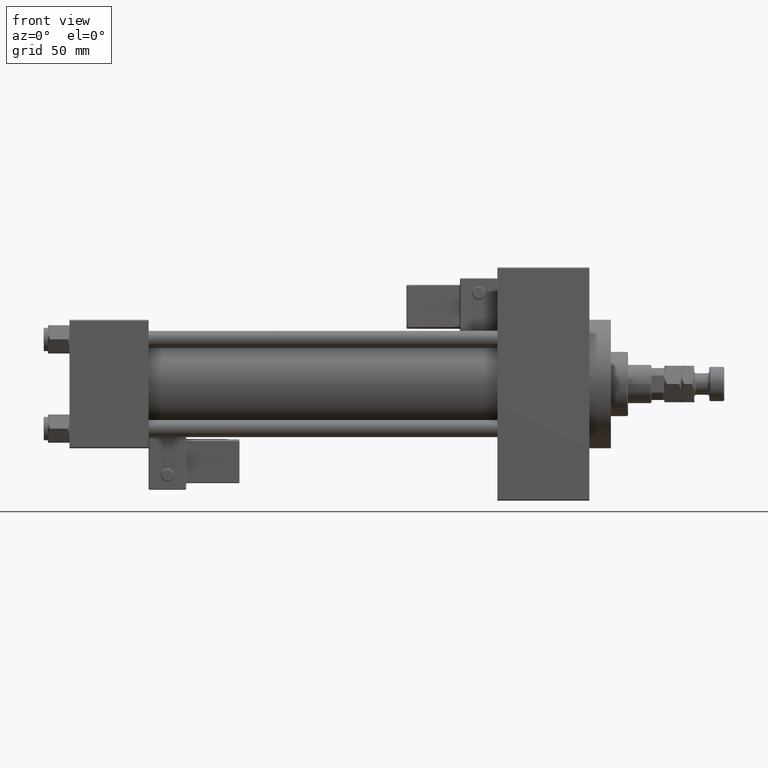
[diagram: clean part render]
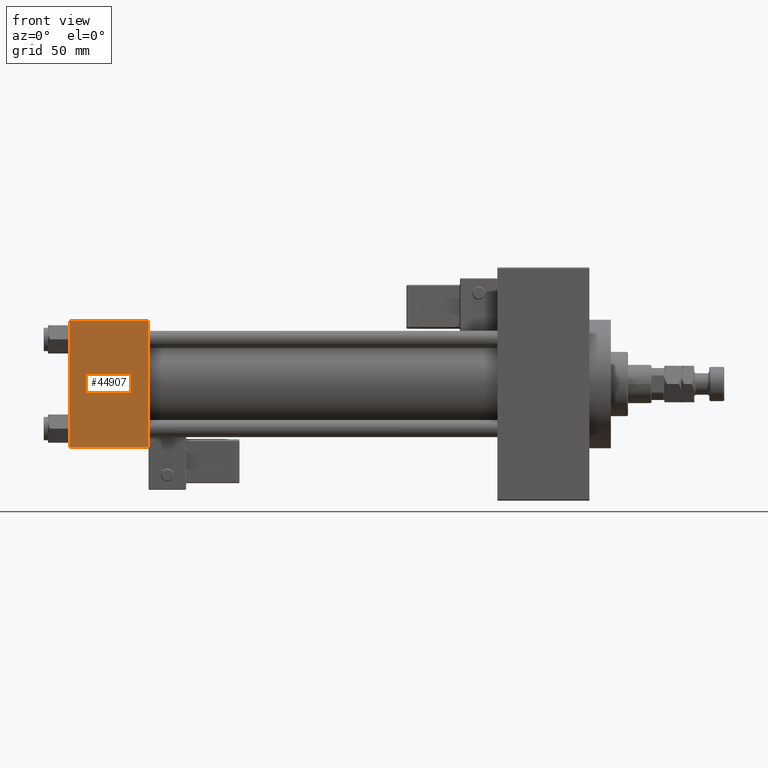
[diagram: same view with one face highlighted and labeled with its STEP entity id]
A machine part, front view. The second image highlights one B-rep face of the part: STEP entity #44907.
In plain terms, the highlighted planar face has unit normal (0, 1, 0).
Its self-contained STEP definition (entity closure, byte-faithful):
#831 = LINE ( 'NONE', #43897, #4338 ) ;
#1011 = EDGE_LOOP ( 'NONE', ( #9126, #33498, #46460, #35427 ) ) ;
#4338 = VECTOR ( 'NONE', #8613, 1000.000000000000000 ) ;
#5013 = DIRECTION ( 'NONE',  ( 1.000000000000000000, 0.000000000000000000, 0.000000000000000000 ) ) ;
#7073 = DIRECTION ( 'NONE',  ( 0.000000000000000000, -0.000000000000000000, 1.000000000000000000 ) ) ;
#8562 = DIRECTION ( 'NONE',  ( -1.000000000000000000, 0.000000000000000000, 0.000000000000000000 ) ) ;
#8613 = DIRECTION ( 'NONE',  ( 0.000000000000000000, 0.000000000000000000, -1.000000000000000000 ) ) ;
#9126 = ORIENTED_EDGE ( 'NONE', *, *, #41792, .T. ) ;
#9898 = VERTEX_POINT ( 'NONE', #32111 ) ;
#11738 = VECTOR ( 'NONE', #8562, 1000.000000000000000 ) ;
#12146 = VECTOR ( 'NONE', #5013, 1000.000000000000000 ) ;
#12197 = EDGE_CURVE ( 'NONE', #46694, #9898, #37416, .T. ) ;
#12591 = VERTEX_POINT ( 'NONE', #31644 ) ;
#12960 = CARTESIAN_POINT ( 'NONE',  ( 37.00000000000000000, -30.00000000000000000, 29.49999999999999289 ) ) ;
#14601 = FACE_OUTER_BOUND ( 'NONE', #1011, .T. ) ;
#17535 = VERTEX_POINT ( 'NONE', #33259 ) ;
#20578 = CARTESIAN_POINT ( 'NONE',  ( 37.00000000000000000, -30.00000000000000000, -29.50000000000001776 ) ) ;
#21958 = AXIS2_PLACEMENT_3D ( 'NONE', #26019, #22628, #7073 ) ;
#22628 = DIRECTION ( 'NONE',  ( -0.000000000000000000, 1.000000000000000000, 0.000000000000000000 ) ) ;
#24061 = DIRECTION ( 'NONE',  ( 0.000000000000000000, 0.000000000000000000, -1.000000000000000000 ) ) ;
#26019 = CARTESIAN_POINT ( 'NONE',  ( 37.00000000000000000, -30.00000000000000000, 29.99999999999999289 ) ) ;
#27124 = CARTESIAN_POINT ( 'NONE',  ( 0.000000000000000000, -30.00000000000000000, -29.50000000000001776 ) ) ;
#27958 = LINE ( 'NONE', #28210, #44538 ) ;
#28210 = CARTESIAN_POINT ( 'NONE',  ( 37.00000000000000000, -30.00000000000000000, 29.99999999999999289 ) ) ;
#29007 = EDGE_CURVE ( 'NONE', #12591, #9898, #27958, .T. ) ;
#31644 = CARTESIAN_POINT ( 'NONE',  ( 37.00000000000000000, -30.00000000000000000, 29.49999999999999289 ) ) ;
#32111 = CARTESIAN_POINT ( 'NONE',  ( 37.00000000000000000, -30.00000000000000000, -29.50000000000001776 ) ) ;
#33259 = CARTESIAN_POINT ( 'NONE',  ( 0.000000000000000000, -30.00000000000000000, 29.49999999999999289 ) ) ;
#33498 = ORIENTED_EDGE ( 'NONE', *, *, #12197, .T. ) ;
#34323 = PLANE ( 'NONE',  #21958 ) ;
#35427 = ORIENTED_EDGE ( 'NONE', *, *, #40605, .T. ) ;
#37416 = LINE ( 'NONE', #20578, #12146 ) ;
#40605 = EDGE_CURVE ( 'NONE', #12591, #17535, #48501, .T. ) ;
#41792 = EDGE_CURVE ( 'NONE', #17535, #46694, #831, .T. ) ;
#43897 = CARTESIAN_POINT ( 'NONE',  ( 0.000000000000000000, -30.00000000000000000, 29.99999999999999289 ) ) ;
#44538 = VECTOR ( 'NONE', #24061, 1000.000000000000000 ) ;
#44907 = ADVANCED_FACE ( 'NONE', ( #14601 ), #34323, .F. ) ;
#46460 = ORIENTED_EDGE ( 'NONE', *, *, #29007, .F. ) ;
#46694 = VERTEX_POINT ( 'NONE', #27124 ) ;
#48501 = LINE ( 'NONE', #12960, #11738 ) ;